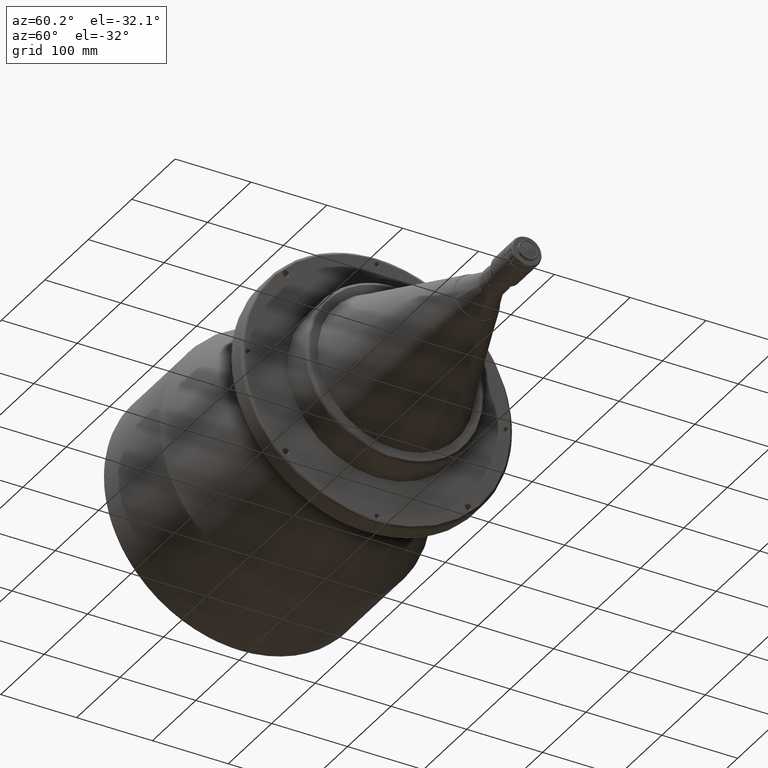
[diagram: clean part render]
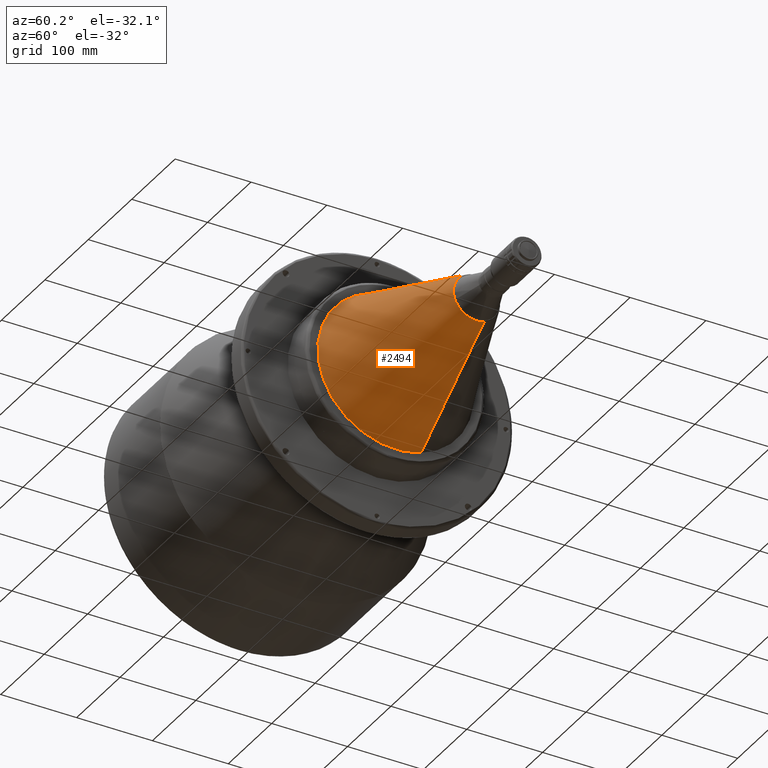
[diagram: same view with one face highlighted and labeled with its STEP entity id]
A machine part, auxiliary view. The second image highlights one B-rep face of the part: STEP entity #2494.
In plain terms, the highlighted conical surface has half-angle 21.16 deg.
Its self-contained STEP definition (entity closure, byte-faithful):
#264 = EDGE_LOOP ( 'NONE', ( #6865, #2354, #2054, #1299, #9001 ) ) ;
#415 = EDGE_CURVE ( 'NONE', #910, #5962, #4192, .T. ) ;
#794 = FACE_OUTER_BOUND ( 'NONE', #264, .T. ) ;
#910 = VERTEX_POINT ( 'NONE', #2375 ) ;
#1299 = ORIENTED_EDGE ( 'NONE', *, *, #7889, .T. ) ;
#1405 = VECTOR ( 'NONE', #1439, 1000.000000000000200 ) ;
#1439 = DIRECTION ( 'NONE',  ( -0.9325735052675155900, 0.1169941862047463700, -0.3414952674157406000 ) ) ;
#1679 = EDGE_CURVE ( 'NONE', #910, #4429, #8887, .T. ) ;
#1795 = EDGE_CURVE ( 'NONE', #5962, #9625, #2715, .T. ) ;
#1836 = CARTESIAN_POINT ( 'NONE',  ( 360.1999999999999900, 0.0000000000000000000, 0.0000000000000000000 ) ) ;
#2054 = ORIENTED_EDGE ( 'NONE', *, *, #9226, .T. ) ;
#2082 = CARTESIAN_POINT ( 'NONE',  ( 360.1999999999999900, 0.0000000000000000000, 0.0000000000000000000 ) ) ;
#2354 = ORIENTED_EDGE ( 'NONE', *, *, #1679, .T. ) ;
#2375 = CARTESIAN_POINT ( 'NONE',  ( 546.8609801347610100, -9.965261322591283400, 29.08768111152506100 ) ) ;
#2420 = AXIS2_PLACEMENT_3D ( 'NONE', #1836, #9238, #5520 ) ;
#2494 = ADVANCED_FACE ( 'NONE', ( #794 ), #7272, .T. ) ;
#2715 = LINE ( 'NONE', #4413, #1405 ) ;
#2778 = CARTESIAN_POINT ( 'NONE',  ( 546.8609801339998700, 0.0000000000000000000, 0.0000000000000000000 ) ) ;
#2786 = CARTESIAN_POINT ( 'NONE',  ( 360.1999999999999900, 33.38244971968266800, -97.44029993135727400 ) ) ;
#3634 = CARTESIAN_POINT ( 'NONE',  ( 546.8609801339999900, -9.965261322620932600, 29.08768111161159500 ) ) ;
#3799 = DIRECTION ( 'NONE',  ( 0.0000000000000000000, 0.3241014535891520400, -0.9460223294306529000 ) ) ;
#4192 = CIRCLE ( 'NONE', #9485, 30.74735152300000300 ) ;
#4413 = CARTESIAN_POINT ( 'NONE',  ( 546.8609801339999900, 9.965261322620929000, -29.08768111161159500 ) ) ;
#4429 = VERTEX_POINT ( 'NONE', #7187 ) ;
#4442 = CARTESIAN_POINT ( 'NONE',  ( 546.8609801339999900, 0.0000000000000000000, 0.0000000000000000000 ) ) ;
#4804 = VERTEX_POINT ( 'NONE', #6785 ) ;
#4881 = CIRCLE ( 'NONE', #6689, 103.0000000000000000 ) ;
#4931 = CARTESIAN_POINT ( 'NONE',  ( 546.8609801346199200, 9.965261323237266200, -29.08768111128096100 ) ) ;
#4975 = DIRECTION ( 'NONE',  ( 1.000000000000000000, -0.0000000000000000000, 0.0000000000000000000 ) ) ;
#5520 = DIRECTION ( 'NONE',  ( 0.0000000000000000000, 0.3241014535891520400, -0.9460223294306529000 ) ) ;
#5925 = DIRECTION ( 'NONE',  ( -1.000000000000000000, 0.0000000000000000000, -0.0000000000000000000 ) ) ;
#5962 = VERTEX_POINT ( 'NONE', #4931 ) ;
#6689 = AXIS2_PLACEMENT_3D ( 'NONE', #2082, #4975, #8723 ) ;
#6785 = CARTESIAN_POINT ( 'NONE',  ( 360.1999999999999900, -102.5522403151290700, 9.593644059898316800 ) ) ;
#6865 = ORIENTED_EDGE ( 'NONE', *, *, #415, .F. ) ;
#7002 = CIRCLE ( 'NONE', #2420, 103.0000000000000000 ) ;
#7187 = CARTESIAN_POINT ( 'NONE',  ( 360.1999999999999900, -33.38244971968268300, 97.44029993135727400 ) ) ;
#7272 = CONICAL_SURFACE ( 'NONE', #9244, 30.74735152300000300, 0.3693186793180257000 ) ;
#7889 = EDGE_CURVE ( 'NONE', #4804, #9625, #4881, .T. ) ;
#7958 = DIRECTION ( 'NONE',  ( 0.0000000000000000000, 0.3241014535891520400, -0.9460223294306529000 ) ) ;
#8723 = DIRECTION ( 'NONE',  ( 0.0000000000000000000, 0.3241014535891528800, -0.9460223294306525600 ) ) ;
#8887 = LINE ( 'NONE', #3634, #9599 ) ;
#8950 = DIRECTION ( 'NONE',  ( -0.9325735052675155900, -0.1169941862047464100, 0.3414952674157406000 ) ) ;
#9001 = ORIENTED_EDGE ( 'NONE', *, *, #1795, .F. ) ;
#9226 = EDGE_CURVE ( 'NONE', #4429, #4804, #7002, .T. ) ;
#9238 = DIRECTION ( 'NONE',  ( 1.000000000000000000, -0.0000000000000000000, 0.0000000000000000000 ) ) ;
#9244 = AXIS2_PLACEMENT_3D ( 'NONE', #4442, #5925, #3799 ) ;
#9368 = DIRECTION ( 'NONE',  ( 1.000000000000000000, -0.0000000000000000000, 0.0000000000000000000 ) ) ;
#9485 = AXIS2_PLACEMENT_3D ( 'NONE', #2778, #9368, #7958 ) ;
#9599 = VECTOR ( 'NONE', #8950, 1000.000000000000200 ) ;
#9625 = VERTEX_POINT ( 'NONE', #2786 ) ;